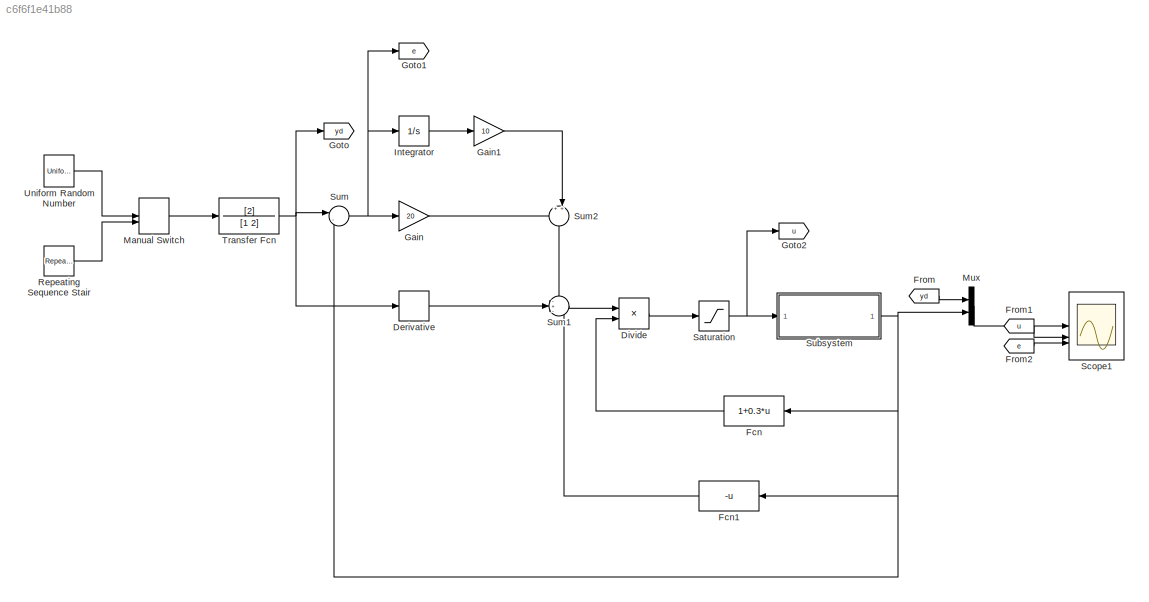
MODEL slx_c6f6f1e41b88
KIND model
CONFIG AbsTol = auto
CONFIG EnableMultiTasking = off
CONFIG FixedStep = auto
CONFIG MaxStep = auto
CONFIG MinStep = auto
CONFIG RelTol = 1e-3
CONFIG SampleTimeConstraint = Unconstrained
CONFIG SolverName = VariableStepAuto
CONFIG StartTime = 0.0
CONFIG StopTime = 100
BLOCK [Derivative] Derivative
BLOCK [Product] Divide
  Inputs = */
BLOCK [Fcn] Fcn
  Expr = 1+0.3*u
  NameLocation = top
BLOCK [Fcn] Fcn1
  Expr = -u
  NameLocation = top
BLOCK [From] From
  GotoTag = yd
BLOCK [From] From1
  GotoTag = u
BLOCK [From] From2
  GotoTag = e
BLOCK [Gain] Gain
  Gain = 20
BLOCK [Gain] Gain1
  Gain = 10
BLOCK [Goto] Goto
  GotoTag = yd
BLOCK [Goto] Goto1
  GotoTag = e
BLOCK [Goto] Goto2
  GotoTag = u
BLOCK [Integrator] Integrator
BLOCK [ManualSwitch] Manual Switch
BLOCK [Mux] Mux
  DisplayOption = bar
  Inputs = 2
BLOCK [Reference] Repeating Sequence Stair  REF=simulink/Sources/Repeating
Sequence
Stair
  SourceBlock = simulink/Sources/Repeating\nSequence\nStair
  SourceType = Repeating Sequence Stair
BLOCK [Saturate] Saturation
  LowerLimit = -10
  UpperLimit = 10
BLOCK [Scope] Scope1
  Floating = off
  NumInputPorts = 3
  ScopeSpecificationString = Simulink.scopes.TimeScopeBlockCfg('CurrentConfiguration', extmgr.ConfigurationSet(extmgr.Configuration('Core','General UI',true),extmgr.Configuration('Core','Source UI',true),extmgr.Configuration('Sources','WiredSimulink',true,'DataLoggingVariableName','ScopeData1'),extmgr.Configuration('Visuals','Time Domain',true,'SerializedDisplays',{struct('MinYLimReal','-7.17346','MaxYLimReal','64.56118','YLa...<+3032ch>
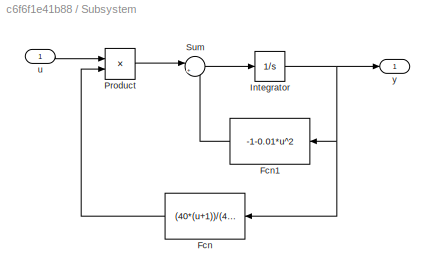
BLOCK [SubSystem] Subsystem
BLOCK [Fcn] Subsystem/Fcn
  Expr = (40*(u+1))/(40+u)
  NameLocation = top
BLOCK [Fcn] Subsystem/Fcn1
  Expr = -1-0.01*u^2
  NameLocation = top
BLOCK [Integrator] Subsystem/Integrator
BLOCK [Product] Subsystem/Product
BLOCK [Sum] Subsystem/Sum
  Inputs = |++
BLOCK [Inport] Subsystem/u
BLOCK [Outport] Subsystem/y
BLOCK [Sum] Sum
  Inputs = |-+
BLOCK [Sum] Sum1
  Inputs = -+-
BLOCK [Sum] Sum2
  Inputs = ++|
  NameLocation = left
BLOCK [TransferFcn] Transfer Fcn
  Denominator = [1 2]
  Numerator = [2]
BLOCK [UniformRandomNumber] Uniform Random Number
  Maximum = 60
  Minimum = 20
  SampleTime = 10
LINE Derivative:1 -> Sum1:2
LINE Divide:1 -> Saturation:1
LINE Fcn1:1 -> Sum1:3
LINE Fcn:1 -> Divide:2
LINE From1:1 -> Scope1:2
LINE From2:1 -> Scope1:3
LINE From:1 -> Mux:1
LINE Gain1:1 -> Sum2:2
LINE Gain:1 -> Sum2:1
LINE Integrator:1 -> Gain1:1
LINE Manual Switch:1 -> Transfer Fcn:1
LINE Mux:1 -> Scope1:1
LINE Repeating Sequence Stair:1 -> Manual Switch:2
NET Saturation:1 -> Goto2:1, Subsystem:1
LINE Subsystem/Fcn1:1 -> Subsystem/Sum:2
LINE Subsystem/Fcn:1 -> Subsystem/Product:2
NET Subsystem/Integrator:1 -> Subsystem/Fcn1:1, Subsystem/Fcn:1, Subsystem/y:1
LINE Subsystem/Product:1 -> Subsystem/Sum:1
LINE Subsystem/Sum:1 -> Subsystem/Integrator:1
LINE Subsystem/u:1 -> Subsystem/Product:1
NET Subsystem:1 -> Fcn1:1, Fcn:1, Mux:2, Sum:2
LINE Sum1:1 -> Divide:1
LINE Sum2:1 -> Sum1:1
NET Sum:1 -> Gain:1, Goto1:1, Integrator:1
NET Transfer Fcn:1 -> Derivative:1, Goto:1, Sum:1
LINE Uniform Random Number:1 -> Manual Switch:1
note: NET lines group one-source signal fan-out (src -> all destinations, sorted); 1:1 wires keep LINE
